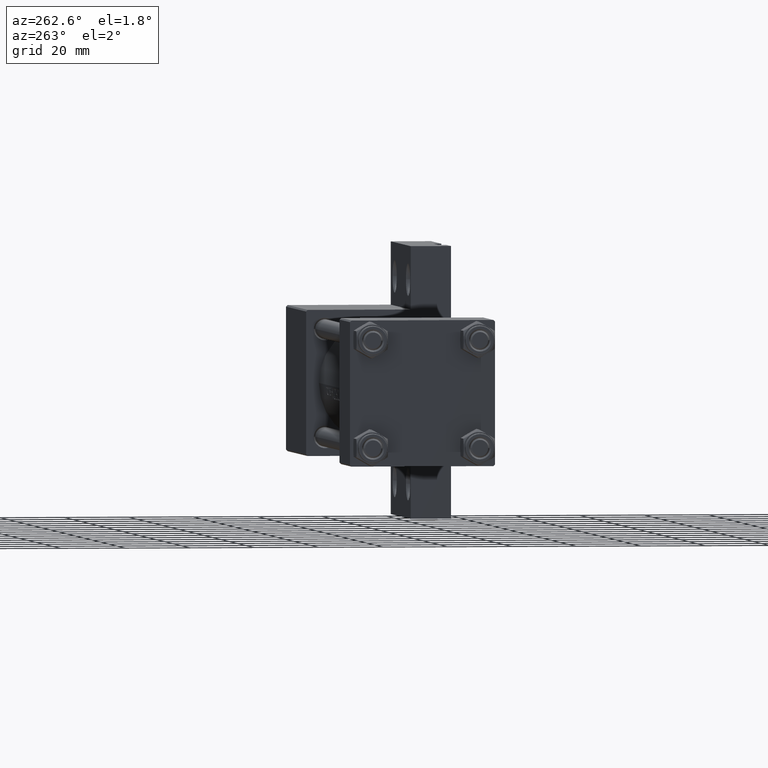
[diagram: clean part render]
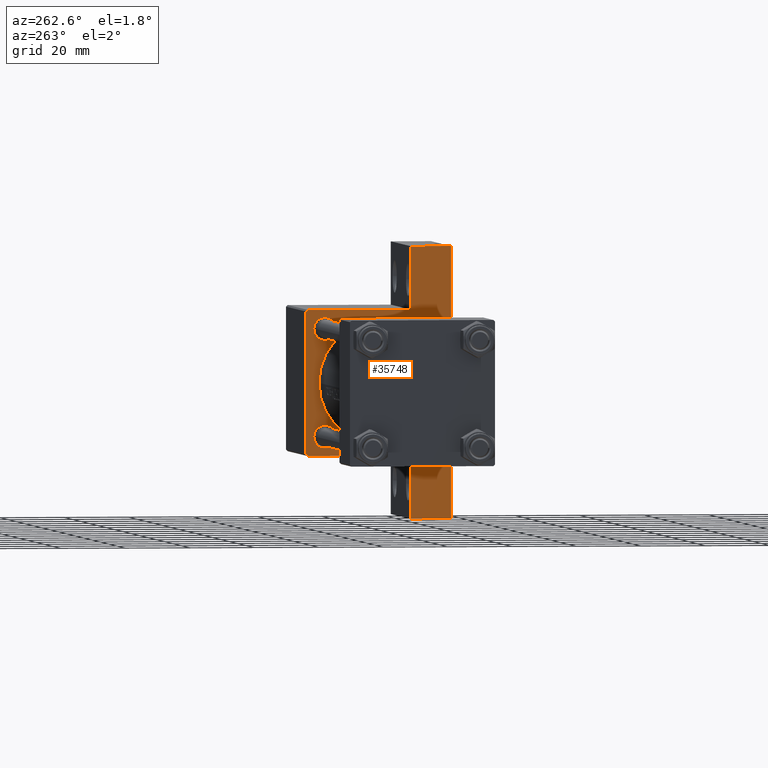
[diagram: same view with one face highlighted and labeled with its STEP entity id]
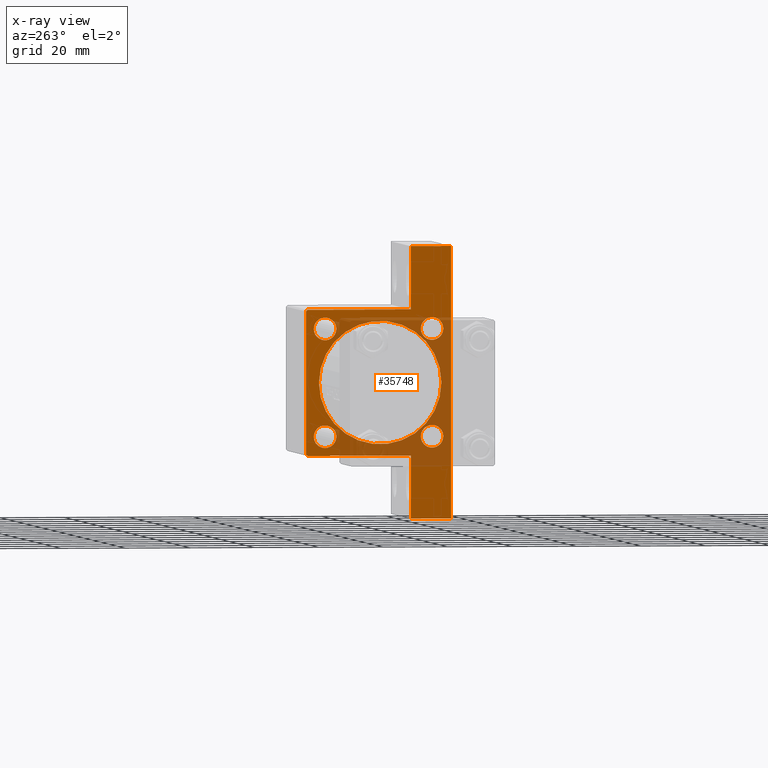
[diagram: x-ray of the same camera — body ghosted, the highlighted face saturated]
A machine part, auxiliary view. The second image highlights one B-rep face of the part: STEP entity #35748.
The next image is the same camera in x-ray: the body ghosted, the highlighted face saturated — about 37% of this face is hidden behind the body in this view.
In plain terms, the highlighted planar face has unit normal (-1, 0, -0).
Its self-contained STEP definition (entity closure, byte-faithful):
#211 = VERTEX_POINT ( 'NONE', #11239 ) ;
#408 = ORIENTED_EDGE ( 'NONE', *, *, #28510, .T. ) ;
#877 = ORIENTED_EDGE ( 'NONE', *, *, #18389, .T. ) ;
#980 = AXIS2_PLACEMENT_3D ( 'NONE', #20614, #14424, #10772 ) ;
#1604 = EDGE_LOOP ( 'NONE', ( #42880, #4162, #24661, #38773, #408, #27085, #12326, #19188, #40108, #26565 ) ) ;
#1818 = CARTESIAN_POINT ( 'NONE',  ( 105.0000000000000142, 22.50000000000000355, 22.50000000000000355 ) ) ;
#3187 = CARTESIAN_POINT ( 'NONE',  ( 105.0000000000000142, 16.59999999999999787, -16.60000000000000497 ) ) ;
#3631 = DIRECTION ( 'NONE',  ( 1.000000000000000000, -0.000000000000000000, 0.000000000000000000 ) ) ;
#3683 = CARTESIAN_POINT ( 'NONE',  ( 105.0000000000000142, 16.59999999999999787, -16.60000000000000497 ) ) ;
#4062 = ORIENTED_EDGE ( 'NONE', *, *, #18185, .T. ) ;
#4162 = ORIENTED_EDGE ( 'NONE', *, *, #13320, .T. ) ;
#4419 = DIRECTION ( 'NONE',  ( 0.000000000000000000, 0.7071067811865474617, -0.7071067811865474617 ) ) ;
#5055 = VECTOR ( 'NONE', #11897, 1000.000000000000000 ) ;
#5229 = LINE ( 'NONE', #1818, #44245 ) ;
#6277 = CIRCLE ( 'NONE', #12515, 3.499999999999999556 ) ;
#6408 = EDGE_CURVE ( 'NONE', #9544, #48007, #46058, .T. ) ;
#6506 = DIRECTION ( 'NONE',  ( 0.000000000000000000, 0.000000000000000000, 1.000000000000000000 ) ) ;
#6583 = LINE ( 'NONE', #28525, #29742 ) ;
#7849 = DIRECTION ( 'NONE',  ( 1.000000000000000000, 0.000000000000000000, 0.000000000000000000 ) ) ;
#8459 = CIRCLE ( 'NONE', #16997, 19.00000000000000000 ) ;
#8566 = VERTEX_POINT ( 'NONE', #34363 ) ;
#8789 = CARTESIAN_POINT ( 'NONE',  ( 105.0000000000000142, 2.388061258337338150E-15, -19.49999999999999645 ) ) ;
#9297 = VERTEX_POINT ( 'NONE', #14520 ) ;
#9516 = CIRCLE ( 'NONE', #31325, 3.500000000000003109 ) ;
#9544 = VERTEX_POINT ( 'NONE', #21958 ) ;
#10742 = LINE ( 'NONE', #22196, #46711 ) ;
#10772 = DIRECTION ( 'NONE',  ( 0.000000000000000000, 0.000000000000000000, 1.000000000000000000 ) ) ;
#10804 = AXIS2_PLACEMENT_3D ( 'NONE', #3683, #32448, #40212 ) ;
#11100 = EDGE_CURVE ( 'NONE', #40853, #35813, #27280, .T. ) ;
#11239 = CARTESIAN_POINT ( 'NONE',  ( 105.0000000000000142, -16.59999999999999076, -13.10000000000000142 ) ) ;
#11897 = DIRECTION ( 'NONE',  ( -0.000000000000000000, 1.000000000000000000, -0.000000000000000000 ) ) ;
#12326 = ORIENTED_EDGE ( 'NONE', *, *, #20391, .F. ) ;
#12346 = CARTESIAN_POINT ( 'NONE',  ( 105.0000000000000142, 41.99999999999999289, -9.999999999999998224 ) ) ;
#12444 = CARTESIAN_POINT ( 'NONE',  ( 105.0000000000000142, 22.50000000000000355, -22.49999999999999645 ) ) ;
#12515 = AXIS2_PLACEMENT_3D ( 'NONE', #44656, #22466, #33683 ) ;
#12799 = EDGE_CURVE ( 'NONE', #40479, #9297, #45771, .T. ) ;
#13038 = DIRECTION ( 'NONE',  ( -0.000000000000000000, 0.7071067811865474617, 0.7071067811865474617 ) ) ;
#13041 = EDGE_LOOP ( 'NONE', ( #40737, #34537 ) ) ;
#13306 = EDGE_CURVE ( 'NONE', #37904, #37592, #45837, .T. ) ;
#13320 = EDGE_CURVE ( 'NONE', #37669, #39675, #41939, .T. ) ;
#13682 = EDGE_CURVE ( 'NONE', #20644, #47359, #36213, .T. ) ;
#13898 = DIRECTION ( 'NONE',  ( 0.000000000000000000, 0.000000000000000000, -1.000000000000000000 ) ) ;
#14424 = DIRECTION ( 'NONE',  ( 1.000000000000000000, -0.000000000000000000, 0.000000000000000000 ) ) ;
#14520 = CARTESIAN_POINT ( 'NONE',  ( 105.0000000000000142, 41.99999999999999289, -9.999999999999998224 ) ) ;
#14599 = CARTESIAN_POINT ( 'NONE',  ( 105.0000000000000142, -16.59999999999999076, 20.10000000000001208 ) ) ;
#15114 = LINE ( 'NONE', #43890, #16336 ) ;
#15137 = FACE_BOUND ( 'NONE', #24612, .T. ) ;
#15403 = DIRECTION ( 'NONE',  ( 0.000000000000000000, 0.000000000000000000, -1.000000000000000000 ) ) ;
#16016 = VERTEX_POINT ( 'NONE', #45950 ) ;
#16336 = VECTOR ( 'NONE', #40708, 1000.000000000000000 ) ;
#16450 = EDGE_LOOP ( 'NONE', ( #45279, #21595 ) ) ;
#16658 = DIRECTION ( 'NONE',  ( 0.000000000000000000, -1.000000000000000000, -2.312964634635742957E-16 ) ) ;
#16997 = AXIS2_PLACEMENT_3D ( 'NONE', #41483, #7849, #15403 ) ;
#17268 = CARTESIAN_POINT ( 'NONE',  ( 105.0000000000000142, -16.59999999999999076, 16.60000000000000853 ) ) ;
#17273 = AXIS2_PLACEMENT_3D ( 'NONE', #18429, #33308, #22565 ) ;
#17442 = AXIS2_PLACEMENT_3D ( 'NONE', #37002, #3631, #18478 ) ;
#17448 = VERTEX_POINT ( 'NONE', #46567 ) ;
#17830 = FACE_BOUND ( 'NONE', #13041, .T. ) ;
#18033 = EDGE_CURVE ( 'NONE', #37669, #36457, #5229, .T. ) ;
#18185 = EDGE_CURVE ( 'NONE', #17448, #34851, #8459, .T. ) ;
#18389 = EDGE_CURVE ( 'NONE', #34851, #17448, #28694, .T. ) ;
#18429 = CARTESIAN_POINT ( 'NONE',  ( 105.0000000000000142, -16.59999999999999076, 16.60000000000000853 ) ) ;
#18478 = DIRECTION ( 'NONE',  ( 0.000000000000000000, 0.000000000000000000, 1.000000000000000000 ) ) ;
#18789 = FACE_OUTER_BOUND ( 'NONE', #1604, .T. ) ;
#18964 = CARTESIAN_POINT ( 'NONE',  ( 105.0000000000000142, 41.99999999999999289, -9.999999999999998224 ) ) ;
#19062 = EDGE_CURVE ( 'NONE', #8566, #41926, #38841, .T. ) ;
#19090 = VECTOR ( 'NONE', #27321, 1000.000000000000000 ) ;
#19188 = ORIENTED_EDGE ( 'NONE', *, *, #11100, .T. ) ;
#19625 = CARTESIAN_POINT ( 'NONE',  ( 105.0000000000000142, -22.24999999999997868, 22.24999999999997868 ) ) ;
#19759 = DIRECTION ( 'NONE',  ( -1.000000000000000000, 0.000000000000000000, -0.000000000000000000 ) ) ;
#19855 = AXIS2_PLACEMENT_3D ( 'NONE', #39396, #46494, #6506 ) ;
#20141 = LINE ( 'NONE', #12346, #36755 ) ;
#20391 = EDGE_CURVE ( 'NONE', #40853, #37592, #10742, .T. ) ;
#20392 = EDGE_CURVE ( 'NONE', #16016, #35813, #15114, .T. ) ;
#20614 = CARTESIAN_POINT ( 'NONE',  ( 105.0000000000000142, -16.59999999999999076, -16.60000000000000853 ) ) ;
#20644 = VERTEX_POINT ( 'NONE', #41450 ) ;
#21595 = ORIENTED_EDGE ( 'NONE', *, *, #38602, .T. ) ;
#21828 = ORIENTED_EDGE ( 'NONE', *, *, #22773, .T. ) ;
#21958 = CARTESIAN_POINT ( 'NONE',  ( 105.0000000000000142, -16.59999999999999076, 13.10000000000000142 ) ) ;
#22196 = CARTESIAN_POINT ( 'NONE',  ( 105.0000000000000000, -42.00000000000000711, -9.999999999999998224 ) ) ;
#22466 = DIRECTION ( 'NONE',  ( 1.000000000000000000, -0.000000000000000000, 0.000000000000000000 ) ) ;
#22565 = DIRECTION ( 'NONE',  ( 0.000000000000000000, 0.000000000000000000, 1.000000000000000000 ) ) ;
#22773 = EDGE_CURVE ( 'NONE', #47359, #20644, #6277, .T. ) ;
#22911 = AXIS2_PLACEMENT_3D ( 'NONE', #3187, #40695, #37051 ) ;
#22932 = CARTESIAN_POINT ( 'NONE',  ( 105.0000000000000142, 0.000000000000000000, 0.000000000000000000 ) ) ;
#23616 = CARTESIAN_POINT ( 'NONE',  ( 105.0000000000000000, -42.00000000000000711, -9.999999999999998224 ) ) ;
#23624 = CARTESIAN_POINT ( 'NONE',  ( 105.0000000000000000, -42.00000000000000711, -22.50000000000000000 ) ) ;
#24612 = EDGE_LOOP ( 'NONE', ( #36821, #28100 ) ) ;
#24661 = ORIENTED_EDGE ( 'NONE', *, *, #27973, .T. ) ;
#24938 = CARTESIAN_POINT ( 'NONE',  ( 105.0000000000000142, 41.99999999999999289, -22.50000000000000000 ) ) ;
#25056 = CIRCLE ( 'NONE', #980, 3.500000000000006661 ) ;
#26565 = ORIENTED_EDGE ( 'NONE', *, *, #35385, .T. ) ;
#27085 = ORIENTED_EDGE ( 'NONE', *, *, #13306, .T. ) ;
#27280 = LINE ( 'NONE', #23616, #38433 ) ;
#27321 = DIRECTION ( 'NONE',  ( 0.000000000000000000, -1.000000000000000000, -7.709882115452476934E-17 ) ) ;
#27657 = EDGE_CURVE ( 'NONE', #211, #31033, #25056, .T. ) ;
#27802 = CARTESIAN_POINT ( 'NONE',  ( 105.0000000000000142, 22.25000000000000355, 22.25000000000000355 ) ) ;
#27973 = EDGE_CURVE ( 'NONE', #39675, #40479, #6583, .T. ) ;
#28100 = ORIENTED_EDGE ( 'NONE', *, *, #6408, .T. ) ;
#28489 = DIRECTION ( 'NONE',  ( 1.000000000000000000, -0.000000000000000000, 0.000000000000000000 ) ) ;
#28510 = EDGE_CURVE ( 'NONE', #9297, #37904, #20141, .T. ) ;
#28525 = CARTESIAN_POINT ( 'NONE',  ( 105.0000000000000142, 22.50000000000000355, 22.50000000000000355 ) ) ;
#28694 = CIRCLE ( 'NONE', #34928, 19.00000000000000000 ) ;
#29000 = DIRECTION ( 'NONE',  ( 0.000000000000000000, 0.000000000000000000, -1.000000000000000000 ) ) ;
#29742 = VECTOR ( 'NONE', #29000, 1000.000000000000000 ) ;
#30294 = EDGE_LOOP ( 'NONE', ( #31381, #21828 ) ) ;
#30784 = CARTESIAN_POINT ( 'NONE',  ( 105.0000000000000142, 22.50000000000000355, 22.00000000000000355 ) ) ;
#31033 = VERTEX_POINT ( 'NONE', #45064 ) ;
#31325 = AXIS2_PLACEMENT_3D ( 'NONE', #17268, #28489, #43354 ) ;
#31381 = ORIENTED_EDGE ( 'NONE', *, *, #13682, .T. ) ;
#32448 = DIRECTION ( 'NONE',  ( 1.000000000000000000, -0.000000000000000000, 0.000000000000000000 ) ) ;
#33308 = DIRECTION ( 'NONE',  ( 1.000000000000000000, -0.000000000000000000, 0.000000000000000000 ) ) ;
#33666 = FACE_BOUND ( 'NONE', #16450, .T. ) ;
#33683 = DIRECTION ( 'NONE',  ( 0.000000000000000000, 0.000000000000000000, 1.000000000000000000 ) ) ;
#33752 = EDGE_CURVE ( 'NONE', #48007, #9544, #9516, .T. ) ;
#34141 = DIRECTION ( 'NONE',  ( -0.000000000000000000, 0.000000000000000000, 1.000000000000000000 ) ) ;
#34363 = CARTESIAN_POINT ( 'NONE',  ( 105.0000000000000142, 16.59999999999999787, -20.10000000000000853 ) ) ;
#34537 = ORIENTED_EDGE ( 'NONE', *, *, #19062, .T. ) ;
#34851 = VERTEX_POINT ( 'NONE', #8789 ) ;
#34928 = AXIS2_PLACEMENT_3D ( 'NONE', #46576, #40442, #13898 ) ;
#35102 = CARTESIAN_POINT ( 'NONE',  ( 105.0000000000000142, -22.50000000000000000, -9.999999999999998224 ) ) ;
#35385 = EDGE_CURVE ( 'NONE', #16016, #36457, #38391, .T. ) ;
#35748 = ADVANCED_FACE ( 'NONE', ( #15137, #41216, #17830, #33666, #40730, #18789 ), #45114, .T. ) ;
#35813 = VERTEX_POINT ( 'NONE', #35102 ) ;
#35977 = EDGE_LOOP ( 'NONE', ( #4062, #877 ) ) ;
#36133 = CARTESIAN_POINT ( 'NONE',  ( 105.0000000000000142, -21.99999999999995381, 22.49999999999999289 ) ) ;
#36167 = CARTESIAN_POINT ( 'NONE',  ( 105.0000000000000142, 16.59999999999999787, -13.09999999999999787 ) ) ;
#36213 = CIRCLE ( 'NONE', #19855, 3.499999999999999556 ) ;
#36457 = VERTEX_POINT ( 'NONE', #36133 ) ;
#36679 = CARTESIAN_POINT ( 'NONE',  ( 105.0000000000000142, 16.59999999999999787, 13.10000000000000142 ) ) ;
#36755 = VECTOR ( 'NONE', #45496, 1000.000000000000000 ) ;
#36821 = ORIENTED_EDGE ( 'NONE', *, *, #33752, .T. ) ;
#36994 = CARTESIAN_POINT ( 'NONE',  ( 105.0000000000000142, 22.50000000000000355, -9.999999999999984013 ) ) ;
#37002 = CARTESIAN_POINT ( 'NONE',  ( 105.0000000000000142, -16.59999999999999076, -16.60000000000000853 ) ) ;
#37051 = DIRECTION ( 'NONE',  ( 0.000000000000000000, 0.000000000000000000, 1.000000000000000000 ) ) ;
#37592 = VERTEX_POINT ( 'NONE', #23624 ) ;
#37669 = VERTEX_POINT ( 'NONE', #39665 ) ;
#37904 = VERTEX_POINT ( 'NONE', #24938 ) ;
#38391 = LINE ( 'NONE', #19625, #44594 ) ;
#38433 = VECTOR ( 'NONE', #46271, 1000.000000000000000 ) ;
#38602 = EDGE_CURVE ( 'NONE', #31033, #211, #41557, .T. ) ;
#38773 = ORIENTED_EDGE ( 'NONE', *, *, #12799, .T. ) ;
#38790 = CARTESIAN_POINT ( 'NONE',  ( 105.0000000000000000, -42.00000000000000711, -9.999999999999998224 ) ) ;
#38841 = CIRCLE ( 'NONE', #10804, 3.500000000000006661 ) ;
#39396 = CARTESIAN_POINT ( 'NONE',  ( 105.0000000000000142, 16.59999999999999787, 16.60000000000000497 ) ) ;
#39665 = CARTESIAN_POINT ( 'NONE',  ( 105.0000000000000142, 22.00000000000000355, 22.50000000000000355 ) ) ;
#39675 = VERTEX_POINT ( 'NONE', #30784 ) ;
#39984 = EDGE_CURVE ( 'NONE', #41926, #8566, #43924, .T. ) ;
#40108 = ORIENTED_EDGE ( 'NONE', *, *, #20392, .F. ) ;
#40212 = DIRECTION ( 'NONE',  ( 0.000000000000000000, 0.000000000000000000, 1.000000000000000000 ) ) ;
#40442 = DIRECTION ( 'NONE',  ( 1.000000000000000000, 0.000000000000000000, 0.000000000000000000 ) ) ;
#40479 = VERTEX_POINT ( 'NONE', #36994 ) ;
#40695 = DIRECTION ( 'NONE',  ( 1.000000000000000000, -0.000000000000000000, 0.000000000000000000 ) ) ;
#40708 = DIRECTION ( 'NONE',  ( 0.000000000000000000, 0.000000000000000000, -1.000000000000000000 ) ) ;
#40730 = FACE_BOUND ( 'NONE', #35977, .T. ) ;
#40737 = ORIENTED_EDGE ( 'NONE', *, *, #39984, .T. ) ;
#40853 = VERTEX_POINT ( 'NONE', #38790 ) ;
#41216 = FACE_BOUND ( 'NONE', #30294, .T. ) ;
#41450 = CARTESIAN_POINT ( 'NONE',  ( 105.0000000000000142, 16.59999999999999787, 20.10000000000000853 ) ) ;
#41483 = CARTESIAN_POINT ( 'NONE',  ( 105.0000000000000142, 6.123233995736727825E-17, -0.4999999999999970024 ) ) ;
#41557 = CIRCLE ( 'NONE', #17442, 3.500000000000006661 ) ;
#41926 = VERTEX_POINT ( 'NONE', #36167 ) ;
#41939 = LINE ( 'NONE', #27802, #47091 ) ;
#42880 = ORIENTED_EDGE ( 'NONE', *, *, #18033, .F. ) ;
#43354 = DIRECTION ( 'NONE',  ( 0.000000000000000000, 0.000000000000000000, 1.000000000000000000 ) ) ;
#43890 = CARTESIAN_POINT ( 'NONE',  ( 105.0000000000000142, -22.49999999999999645, 22.49999999999999289 ) ) ;
#43924 = CIRCLE ( 'NONE', #22911, 3.500000000000006661 ) ;
#44245 = VECTOR ( 'NONE', #16658, 1000.000000000000000 ) ;
#44594 = VECTOR ( 'NONE', #13038, 1000.000000000000114 ) ;
#44618 = DIRECTION ( 'NONE',  ( 0.000000000000000000, 0.000000000000000000, -1.000000000000000000 ) ) ;
#44656 = CARTESIAN_POINT ( 'NONE',  ( 105.0000000000000142, 16.59999999999999787, 16.60000000000000497 ) ) ;
#45064 = CARTESIAN_POINT ( 'NONE',  ( 105.0000000000000142, -16.59999999999999076, -20.10000000000001208 ) ) ;
#45114 = PLANE ( 'NONE',  #45396 ) ;
#45279 = ORIENTED_EDGE ( 'NONE', *, *, #27657, .T. ) ;
#45396 = AXIS2_PLACEMENT_3D ( 'NONE', #22932, #19759, #34141 ) ;
#45496 = DIRECTION ( 'NONE',  ( 0.000000000000000000, 0.000000000000000000, -1.000000000000000000 ) ) ;
#45771 = LINE ( 'NONE', #18964, #5055 ) ;
#45837 = LINE ( 'NONE', #12444, #19090 ) ;
#45950 = CARTESIAN_POINT ( 'NONE',  ( 105.0000000000000142, -22.49999999999999645, 21.99999999999996447 ) ) ;
#46058 = CIRCLE ( 'NONE', #17273, 3.500000000000003109 ) ;
#46271 = DIRECTION ( 'NONE',  ( 7.116814260417666541E-16, 1.000000000000000000, 0.000000000000000000 ) ) ;
#46494 = DIRECTION ( 'NONE',  ( 1.000000000000000000, -0.000000000000000000, 0.000000000000000000 ) ) ;
#46567 = CARTESIAN_POINT ( 'NONE',  ( 105.0000000000000142, 6.123233995736727825E-17, 18.50000000000000355 ) ) ;
#46576 = CARTESIAN_POINT ( 'NONE',  ( 105.0000000000000142, 6.123233995736727825E-17, -0.4999999999999970024 ) ) ;
#46711 = VECTOR ( 'NONE', #44618, 1000.000000000000000 ) ;
#47091 = VECTOR ( 'NONE', #4419, 1000.000000000000114 ) ;
#47359 = VERTEX_POINT ( 'NONE', #36679 ) ;
#48007 = VERTEX_POINT ( 'NONE', #14599 ) ;